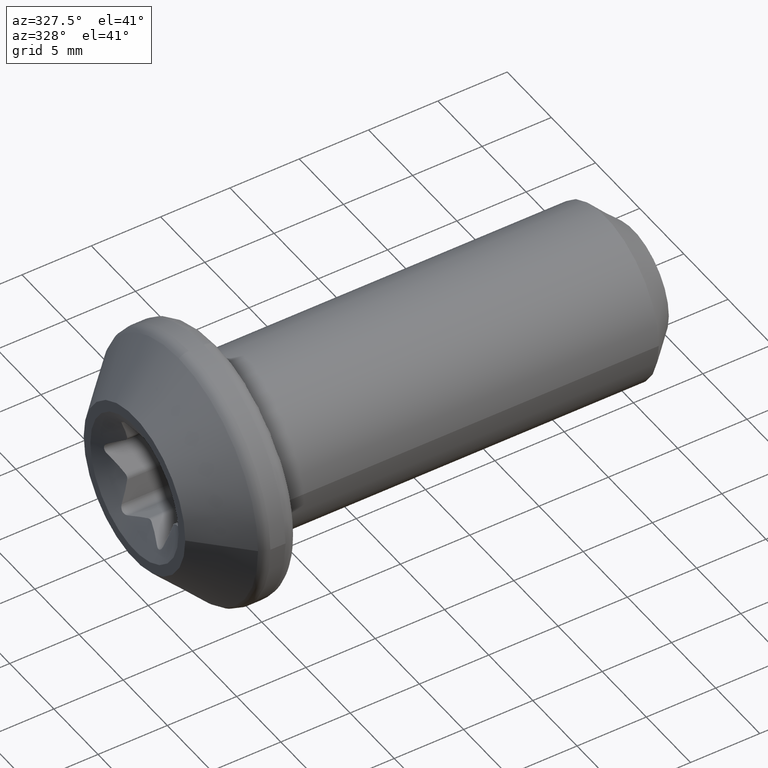
[diagram: clean part render]
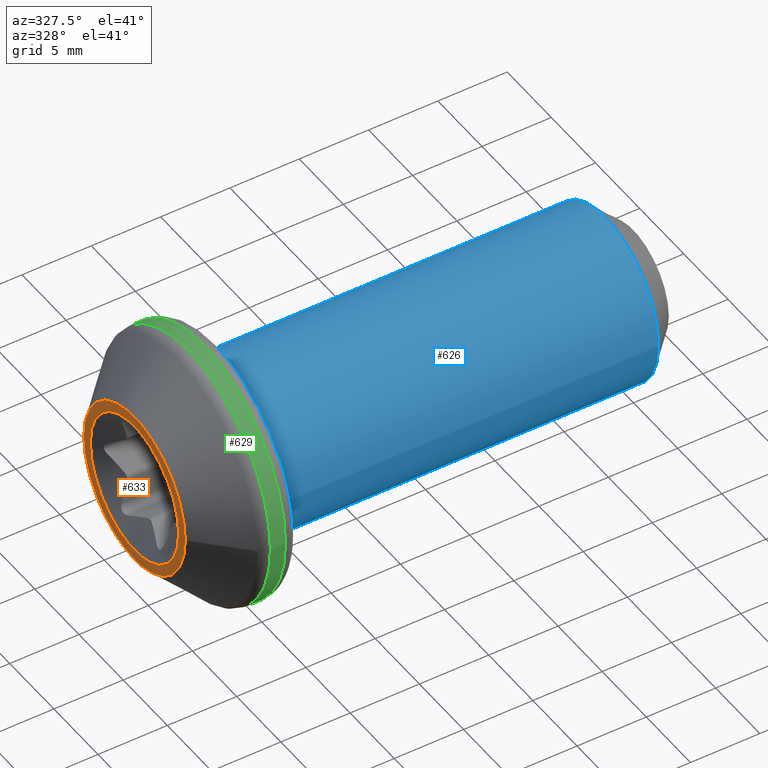
[diagram: same view with three faces highlighted in distinct colors, each labeled with its STEP entity id]
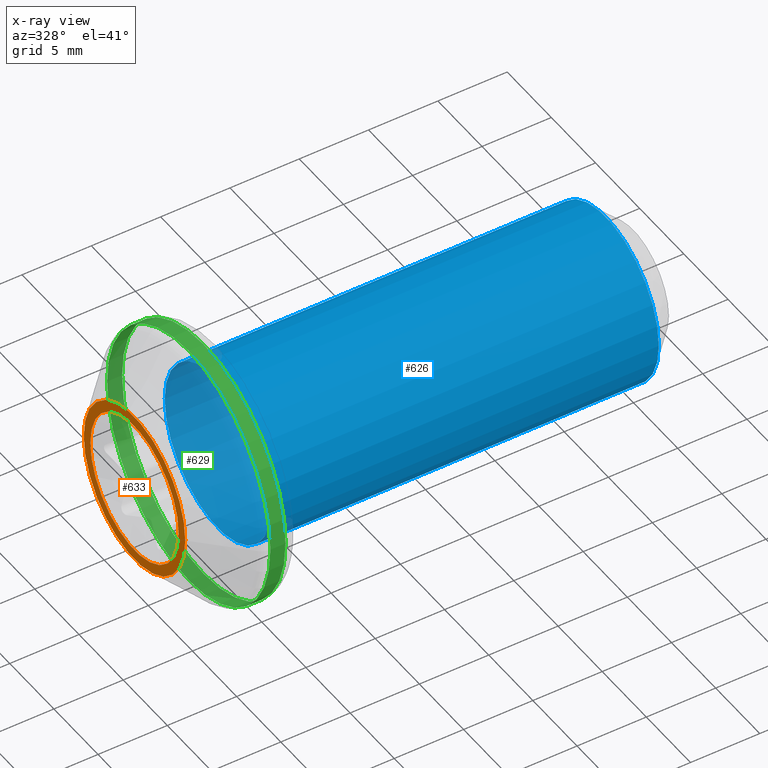
[diagram: x-ray of the same camera — body ghosted, the three highlighted faces saturated]
A machine part, auxiliary view with three faces highlighted in distinct colors.
The next image is the same camera in x-ray (body ghosted, the three faces saturated) — at least one of them is partly hidden behind the body in this view.
Their STEP definitions:

[orange] entity #633 — the highlighted planar face has unit normal (-1, 0, 0).
#16=FACE_BOUND('',#121,.T.);
#49=PLANE('',#718);
#84=FACE_OUTER_BOUND('',#120,.T.);
#120=EDGE_LOOP('',(#583));
#121=EDGE_LOOP('',(#584));
#220=CIRCLE('',#667,5.);
#243=CIRCLE('',#717,5.75);
#261=VERTEX_POINT('',#977);
#305=VERTEX_POINT('',#1230);
#329=EDGE_CURVE('',#261,#261,#220,.T.);
#398=EDGE_CURVE('',#305,#305,#243,.T.);
#583=ORIENTED_EDGE('',*,*,#398,.F.);
#584=ORIENTED_EDGE('',*,*,#329,.T.);
#633=ADVANCED_FACE('',(#84,#16),#49,.T.);
#667=AXIS2_PLACEMENT_3D('',#979,#753,#754);
#717=AXIS2_PLACEMENT_3D('',#1232,#882,#883);
#718=AXIS2_PLACEMENT_3D('',#1233,#884,#885);
#753=DIRECTION('center_axis',(1.,0.,0.));
#754=DIRECTION('ref_axis',(0.,0.,-1.));
#882=DIRECTION('center_axis',(1.,0.,0.));
#883=DIRECTION('ref_axis',(0.,0.,-1.));
#884=DIRECTION('center_axis',(-1.,0.,0.));
#885=DIRECTION('ref_axis',(0.,0.,1.));
#977=CARTESIAN_POINT('',(-6.,-5.,-6.12323399573677E-16));
#979=CARTESIAN_POINT('Origin',(-6.,0.,0.));
#1230=CARTESIAN_POINT('',(-6.,-5.75,-7.04171909509728E-16));
#1232=CARTESIAN_POINT('Origin',(-6.,0.,0.));
#1233=CARTESIAN_POINT('Origin',(-6.,5.75,0.));

[blue] entity #626 — the highlighted cylindrical surface (bore or boss wall) has radius 6 mm, axis along (1, 0, 0).
#77=FACE_OUTER_BOUND('',#112,.T.);
#112=EDGE_LOOP('',(#553,#554,#555,#556,#557));
#173=LINE('',#1205,#214);
#214=VECTOR('',#847,6.);
#231=CIRCLE('',#698,6.);
#232=CIRCLE('',#699,6.);
#233=CIRCLE('',#701,6.);
#295=VERTEX_POINT('',#1198);
#296=VERTEX_POINT('',#1200);
#297=VERTEX_POINT('',#1204);
#383=EDGE_CURVE('',#295,#296,#231,.T.);
#384=EDGE_CURVE('',#296,#295,#232,.T.);
#385=EDGE_CURVE('',#296,#297,#173,.T.);
#386=EDGE_CURVE('',#297,#297,#233,.T.);
#553=ORIENTED_EDGE('',*,*,#383,.F.);
#554=ORIENTED_EDGE('',*,*,#384,.F.);
#555=ORIENTED_EDGE('',*,*,#385,.T.);
#556=ORIENTED_EDGE('',*,*,#386,.T.);
#557=ORIENTED_EDGE('',*,*,#385,.F.);
#597=CYLINDRICAL_SURFACE('',#700,6.);
#626=ADVANCED_FACE('',(#77),#597,.T.);
#698=AXIS2_PLACEMENT_3D('',#1201,#841,#842);
#699=AXIS2_PLACEMENT_3D('',#1202,#843,#844);
#700=AXIS2_PLACEMENT_3D('',#1203,#845,#846);
#701=AXIS2_PLACEMENT_3D('',#1206,#848,#849);
#841=DIRECTION('center_axis',(1.,0.,0.));
#842=DIRECTION('ref_axis',(0.,-1.,0.));
#843=DIRECTION('center_axis',(1.,0.,0.));
#844=DIRECTION('ref_axis',(0.,-1.,0.));
#845=DIRECTION('center_axis',(1.,0.,0.));
#846=DIRECTION('ref_axis',(0.,1.,0.));
#847=DIRECTION('',(-1.,0.,0.));
#848=DIRECTION('center_axis',(1.,0.,0.));
#849=DIRECTION('ref_axis',(0.,0.,-1.));
#1198=CARTESIAN_POINT('',(28.,6.,7.34788079488412E-16));
#1200=CARTESIAN_POINT('',(28.,-6.,-7.34788079488412E-16));
#1201=CARTESIAN_POINT('Origin',(28.,0.,0.));
#1202=CARTESIAN_POINT('Origin',(28.,0.,0.));
#1203=CARTESIAN_POINT('Origin',(15.,0.,0.));
#1204=CARTESIAN_POINT('',(0.,-6.,-7.34788079488412E-16));
#1205=CARTESIAN_POINT('',(15.,-6.,-7.34788079488412E-16));
#1206=CARTESIAN_POINT('Origin',(0.,0.,0.));

[green] entity #629 — the highlighted cylindrical surface (bore or boss wall) has radius 9.25 mm, axis along (1, 0, 0).
#80=FACE_OUTER_BOUND('',#115,.T.);
#115=EDGE_LOOP('',(#564,#565,#566,#567,#568,#569));
#174=LINE('',#1218,#215);
#215=VECTOR('',#864,9.25);
#236=CIRCLE('',#706,9.25);
#237=CIRCLE('',#707,9.25);
#238=CIRCLE('',#709,9.25);
#239=CIRCLE('',#710,9.25);
#299=VERTEX_POINT('',#1211);
#300=VERTEX_POINT('',#1213);
#301=VERTEX_POINT('',#1217);
#302=VERTEX_POINT('',#1219);
#389=EDGE_CURVE('',#299,#300,#236,.T.);
#390=EDGE_CURVE('',#300,#299,#237,.T.);
#391=EDGE_CURVE('',#300,#301,#174,.T.);
#392=EDGE_CURVE('',#302,#301,#238,.T.);
#393=EDGE_CURVE('',#301,#302,#239,.T.);
#564=ORIENTED_EDGE('',*,*,#390,.F.);
#565=ORIENTED_EDGE('',*,*,#391,.T.);
#566=ORIENTED_EDGE('',*,*,#392,.F.);
#567=ORIENTED_EDGE('',*,*,#393,.F.);
#568=ORIENTED_EDGE('',*,*,#391,.F.);
#569=ORIENTED_EDGE('',*,*,#389,.F.);
#598=CYLINDRICAL_SURFACE('',#708,9.25);
#629=ADVANCED_FACE('',(#80),#598,.T.);
#706=AXIS2_PLACEMENT_3D('',#1214,#858,#859);
#707=AXIS2_PLACEMENT_3D('',#1215,#860,#861);
#708=AXIS2_PLACEMENT_3D('',#1216,#862,#863);
#709=AXIS2_PLACEMENT_3D('',#1220,#865,#866);
#710=AXIS2_PLACEMENT_3D('',#1221,#867,#868);
#858=DIRECTION('center_axis',(1.,0.,0.));
#859=DIRECTION('ref_axis',(0.,-1.,1.83697019872103E-16));
#860=DIRECTION('center_axis',(1.,0.,0.));
#861=DIRECTION('ref_axis',(0.,-1.,1.83697019872103E-16));
#862=DIRECTION('center_axis',(1.,0.,0.));
#863=DIRECTION('ref_axis',(0.,1.,0.));
#864=DIRECTION('',(-1.,0.,0.));
#865=DIRECTION('center_axis',(-1.,0.,0.));
#866=DIRECTION('ref_axis',(0.,-1.,1.83697019872103E-16));
#867=DIRECTION('center_axis',(-1.,0.,0.));
#868=DIRECTION('ref_axis',(0.,-1.,1.83697019872103E-16));
#1211=CARTESIAN_POINT('',(-1.,-1.1327982892113E-15,9.25));
#1213=CARTESIAN_POINT('',(-1.,-9.25,-1.1327982892113E-15));
#1214=CARTESIAN_POINT('Origin',(-1.,0.,0.));
#1215=CARTESIAN_POINT('Origin',(-1.,0.,0.));
#1216=CARTESIAN_POINT('Origin',(-1.25,0.,0.));
#1217=CARTESIAN_POINT('',(-2.08578643762691,-9.25,-1.1327982892113E-15));
#1218=CARTESIAN_POINT('',(-1.25,-9.25,-1.1327982892113E-15));
#1219=CARTESIAN_POINT('',(-2.08578643762691,-1.1327982892113E-15,9.25));
#1220=CARTESIAN_POINT('Origin',(-2.08578643762691,0.,0.));
#1221=CARTESIAN_POINT('Origin',(-2.08578643762691,0.,0.));